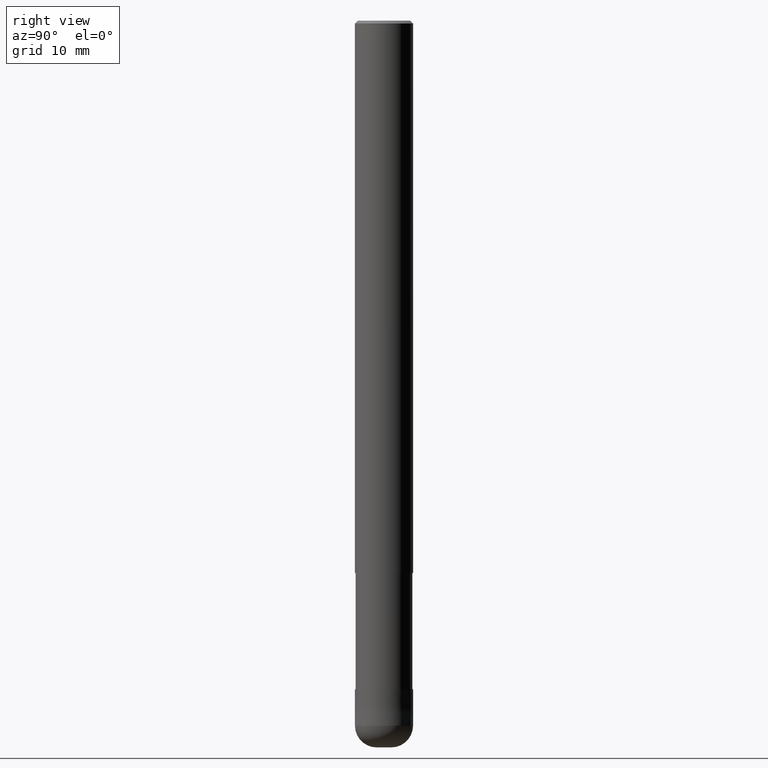
[diagram: clean part render]
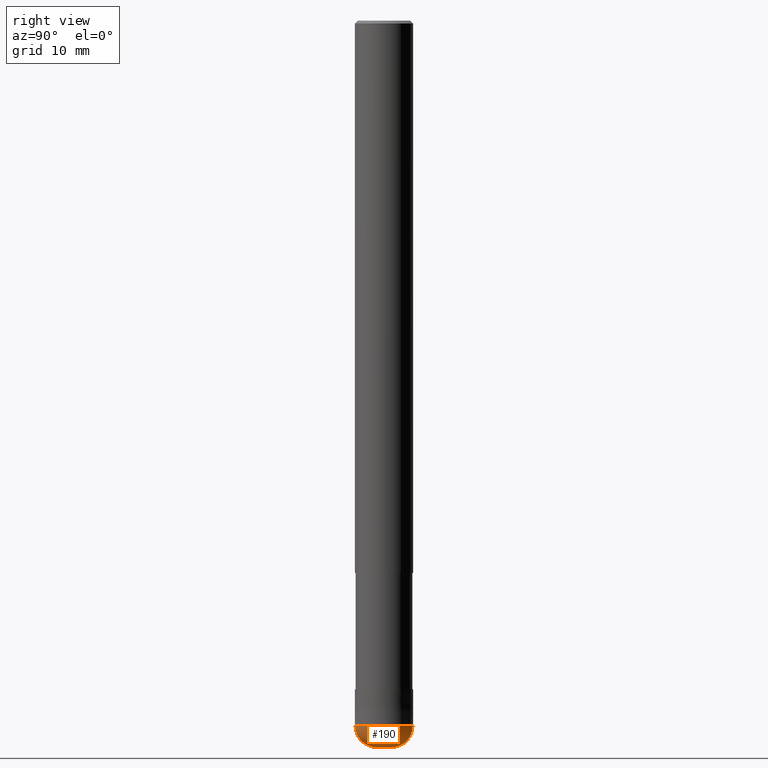
[diagram: same view with one face highlighted and labeled with its STEP entity id]
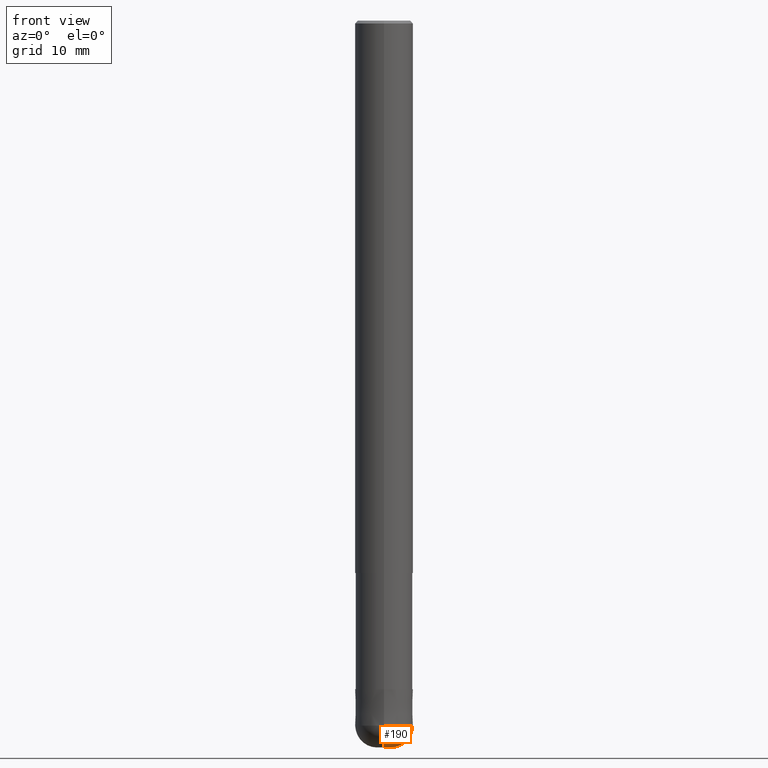
[diagram: same view with one face highlighted and labeled with its STEP entity id]
A machine part, right view. The second image highlights one B-rep face of the part: STEP entity #190.
A second angle (front view) of the same face is appended — the face is thin or edge-on in the first view.
In plain terms, the highlighted toroidal blend (fillet) surface has major radius 1 mm and minor (blend) radius 3 mm.
Its self-contained STEP definition (entity closure, byte-faithful):
#98=VERTEX_POINT('',#235);
#128=VERTEX_POINT('',#267);
#132=EDGE_CURVE('',#204,#134,#271,.T.);
#134=VERTEX_POINT('',#273);
#140=EDGE_CURVE('',#134,#98,#280,.T.);
#154=EDGE_CURVE('',#98,#128,#296,.T.);
#184=EDGE_CURVE('',#204,#128,#333,.T.);
#190=ADVANCED_FACE('',(#339),#340,.T.);
#204=VERTEX_POINT('',#355);
#235=CARTESIAN_POINT('',(4.89842541528951E-016,-4.0,-97.0));
#267=CARTESIAN_POINT('',(1.22460635382238E-016,-1.0,-100.0));
#271=CIRCLE('',#435,3.0);
#273=CARTESIAN_POINT('',(0.0,4.0,-97.0));
#280=CIRCLE('',#445,4.0);
#296=CIRCLE('',#465,3.0);
#333=CIRCLE('',#508,1.0);
#339=FACE_OUTER_BOUND('',#516,.T.);
#340=TOROIDAL_SURFACE('',#517,0.999999999999996,3.0);
#355=CARTESIAN_POINT('',(0.0,1.0,-100.0));
#435=AXIS2_PLACEMENT_3D('',#582,#583,#584);
#445=AXIS2_PLACEMENT_3D('',#593,#594,#595);
#465=AXIS2_PLACEMENT_3D('',#616,#617,#618);
#508=AXIS2_PLACEMENT_3D('',#675,#676,#677);
#516=EDGE_LOOP('',(#685,#686,#687,#688));
#517=AXIS2_PLACEMENT_3D('',#689,#690,#691);
#582=CARTESIAN_POINT('',(-1.22460635382237E-016,0.999999999999996,-97.0));
#583=DIRECTION('',(1.0,1.22460635382238E-016,0.0));
#584=DIRECTION('',(-1.22460635382238E-016,1.0,0.0));
#593=CARTESIAN_POINT('',(0.0,0.0,-97.0));
#594=DIRECTION('',(0.0,0.0,-1.0));
#595=DIRECTION('',(0.0,1.0,0.0));
#616=CARTESIAN_POINT('',(1.22460635382237E-016,-0.999999999999996,-97.0));
#617=DIRECTION('',(1.0,1.22460635382238E-016,0.0));
#618=DIRECTION('',(1.22460635382238E-016,-1.0,-0.0));
#675=CARTESIAN_POINT('',(0.0,0.0,-100.0));
#676=DIRECTION('',(0.0,0.0,-1.0));
#677=DIRECTION('',(0.0,1.0,0.0));
#685=ORIENTED_EDGE('',*,*,#154,.T.);
#686=ORIENTED_EDGE('',*,*,#184,.F.);
#687=ORIENTED_EDGE('',*,*,#132,.T.);
#688=ORIENTED_EDGE('',*,*,#140,.T.);
#689=CARTESIAN_POINT('',(0.0,0.0,-97.0));
#690=DIRECTION('',(0.0,0.0,-1.0));
#691=DIRECTION('',(0.0,-1.0,0.0));